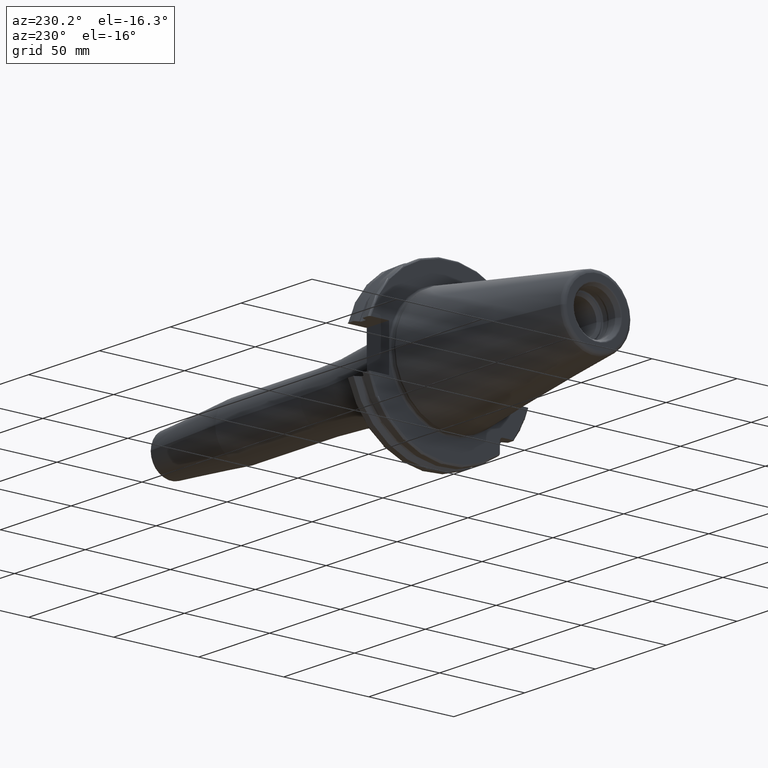
[diagram: clean part render]
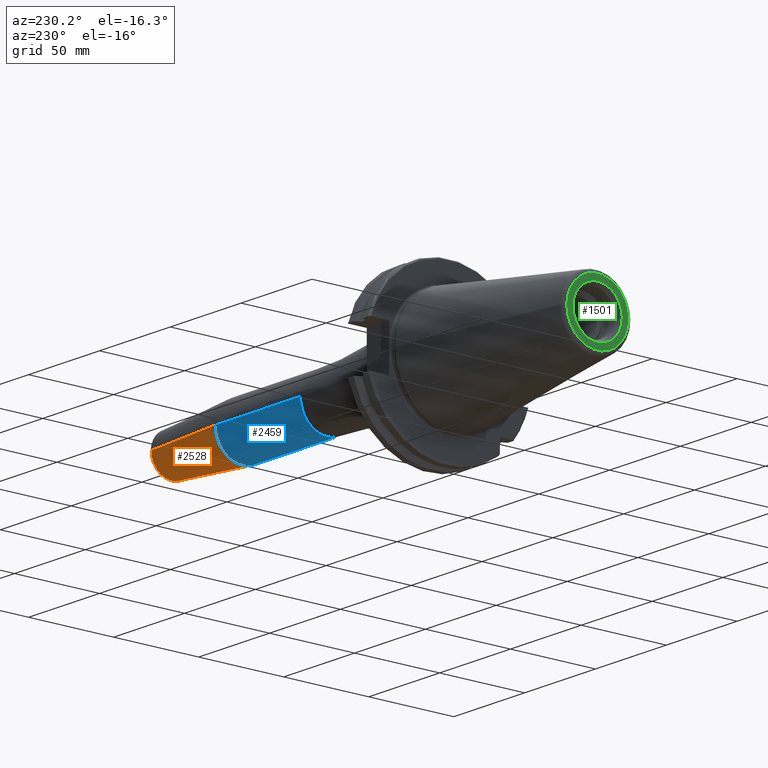
[diagram: same view with three faces highlighted in distinct colors, each labeled with its STEP entity id]
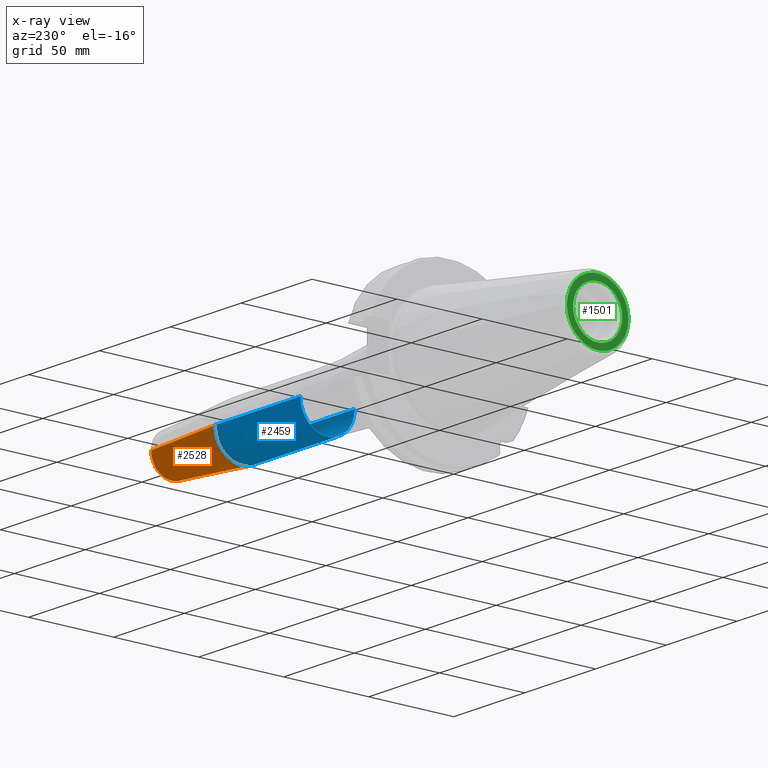
[diagram: x-ray of the same camera — body ghosted, the three highlighted faces saturated]
A machine part, auxiliary view with three faces highlighted in distinct colors.
The next image is the same camera in x-ray (body ghosted, the three faces saturated) — at least one of them is partly hidden behind the body in this view.
Their STEP definitions:

[orange] entity #2528 — the highlighted conical surface has half-angle 4.5 deg.
#935=CARTESIAN_POINT('',(1.491751810553E2,0.E0,0.E0));
#936=DIRECTION('',(-1.E0,0.E0,0.E0));
#937=DIRECTION('',(0.E0,1.E0,0.E0));
#938=AXIS2_PLACEMENT_3D('',#935,#936,#937);
#969=CARTESIAN_POINT('',(1.990784590957E2,0.E0,0.E0));
#970=DIRECTION('',(-1.E0,0.E0,0.E0));
#971=DIRECTION('',(0.E0,1.E0,0.E0));
#972=AXIS2_PLACEMENT_3D('',#969,#970,#971);
#974=DIRECTION('',(-9.969173337331E-1,7.845909572785E-2,6.978011430438E-14));
#975=VECTOR('',#974,5.005758888107E1);
#976=CARTESIAN_POINT('',(1.990784590957E2,1.207252684207E1,
-3.491064839044E-12));
#977=LINE('',#976,#975);
#978=DIRECTION('',(-9.969173337331E-1,-7.845909572785E-2,-6.977286913640E-14));
#979=VECTOR('',#978,5.005758888107E1);
#980=CARTESIAN_POINT('',(1.990784590957E2,-1.207252684207E1,
3.490702163404E-12));
#981=LINE('',#980,#979);
#1452=CARTESIAN_POINT('',(1.491751810553E2,1.6E1,0.E0));
#1453=CARTESIAN_POINT('',(1.491751810553E2,-1.6E1,0.E0));
#1454=VERTEX_POINT('',#1452);
#1455=VERTEX_POINT('',#1453);
#1456=CARTESIAN_POINT('',(1.990784590957E2,1.207252684207E1,0.E0));
#1457=CARTESIAN_POINT('',(1.990784590957E2,-1.207252684207E1,0.E0));
#1458=VERTEX_POINT('',#1456);
#1459=VERTEX_POINT('',#1457);
#2517=CARTESIAN_POINT('',(1.741268200755E2,0.E0,0.E0));
#2518=DIRECTION('',(-1.E0,0.E0,0.E0));
#2519=DIRECTION('',(0.E0,1.E0,0.E0));
#2520=AXIS2_PLACEMENT_3D('',#2517,#2518,#2519);
#2521=CONICAL_SURFACE('',#2520,1.403626342104E1,4.5E0);
#2522=ORIENTED_EDGE('',*,*,#2508,.F.);
#2523=ORIENTED_EDGE('',*,*,#2483,.T.);
#2524=ORIENTED_EDGE('',*,*,#2453,.T.);
#2525=ORIENTED_EDGE('',*,*,#2480,.F.);
#2526=EDGE_LOOP('',(#2522,#2523,#2524,#2525));
#2527=FACE_OUTER_BOUND('',#2526,.F.);
#2528=ADVANCED_FACE('',(#2527),#2521,.T.);
#939=CIRCLE('',#938,1.6E1);
#973=CIRCLE('',#972,1.207252684207E1);
#2453=EDGE_CURVE('',#1454,#1455,#939,.T.);
#2480=EDGE_CURVE('',#1459,#1455,#981,.T.);
#2483=EDGE_CURVE('',#1458,#1454,#977,.T.);
#2508=EDGE_CURVE('',#1458,#1459,#973,.T.);

[blue] entity #2459 — the highlighted cylindrical surface (edge-blend (fillet) strip) has radius 16 mm, axis along (1, 0, 0).
#926=CARTESIAN_POINT('',(8.905E1,0.E0,0.E0));
#927=DIRECTION('',(1.E0,0.E0,0.E0));
#928=DIRECTION('',(0.E0,-1.E0,0.E0));
#929=AXIS2_PLACEMENT_3D('',#926,#927,#928);
#931=DIRECTION('',(-1.E0,0.E0,0.E0));
#932=VECTOR('',#931,6.012518105530E1);
#933=CARTESIAN_POINT('',(1.491751810553E2,-1.6E1,0.E0));
#934=LINE('',#933,#932);
#935=CARTESIAN_POINT('',(1.491751810553E2,0.E0,0.E0));
#936=DIRECTION('',(-1.E0,0.E0,0.E0));
#937=DIRECTION('',(0.E0,1.E0,0.E0));
#938=AXIS2_PLACEMENT_3D('',#935,#936,#937);
#940=DIRECTION('',(-1.E0,0.E0,0.E0));
#941=VECTOR('',#940,6.012518105530E1);
#942=CARTESIAN_POINT('',(1.491751810553E2,1.6E1,0.E0));
#943=LINE('',#942,#941);
#1452=CARTESIAN_POINT('',(1.491751810553E2,1.6E1,0.E0));
#1453=CARTESIAN_POINT('',(1.491751810553E2,-1.6E1,0.E0));
#1454=VERTEX_POINT('',#1452);
#1455=VERTEX_POINT('',#1453);
#1480=CARTESIAN_POINT('',(8.905E1,1.6E1,0.E0));
#1481=VERTEX_POINT('',#1480);
#1482=CARTESIAN_POINT('',(8.905E1,-1.6E1,0.E0));
#1483=VERTEX_POINT('',#1482);
#2445=CARTESIAN_POINT('',(1.00025E1,0.E0,0.E0));
#2446=DIRECTION('',(1.E0,0.E0,0.E0));
#2447=DIRECTION('',(0.E0,-1.E0,0.E0));
#2448=AXIS2_PLACEMENT_3D('',#2445,#2446,#2447);
#2449=CYLINDRICAL_SURFACE('',#2448,1.6E1);
#2450=ORIENTED_EDGE('',*,*,#2439,.F.);
#2452=ORIENTED_EDGE('',*,*,#2451,.F.);
#2454=ORIENTED_EDGE('',*,*,#2453,.F.);
#2456=ORIENTED_EDGE('',*,*,#2455,.T.);
#2457=EDGE_LOOP('',(#2450,#2452,#2454,#2456));
#2458=FACE_OUTER_BOUND('',#2457,.F.);
#2459=ADVANCED_FACE('',(#2458),#2449,.T.);
#930=CIRCLE('',#929,1.6E1);
#939=CIRCLE('',#938,1.6E1);
#2439=EDGE_CURVE('',#1483,#1481,#930,.T.);
#2451=EDGE_CURVE('',#1455,#1483,#934,.T.);
#2453=EDGE_CURVE('',#1454,#1455,#939,.T.);
#2455=EDGE_CURVE('',#1454,#1481,#943,.T.);

[green] entity #1501 — the highlighted planar face has unit normal (1, 0, 0).
#2=CARTESIAN_POINT('',(-1.016E2,0.E0,0.E0));
#3=DIRECTION('',(-1.E0,0.E0,0.E0));
#4=DIRECTION('',(0.E0,1.E0,0.E0));
#5=AXIS2_PLACEMENT_3D('',#2,#3,#4);
#7=CARTESIAN_POINT('',(-1.016E2,0.E0,0.E0));
#8=DIRECTION('',(1.E0,0.E0,0.E0));
#9=DIRECTION('',(0.E0,1.E0,0.E0));
#10=AXIS2_PLACEMENT_3D('',#7,#8,#9);
#12=CARTESIAN_POINT('',(-1.016E2,0.E0,0.E0));
#13=DIRECTION('',(1.E0,0.E0,0.E0));
#14=DIRECTION('',(0.E0,1.E0,0.E0));
#15=AXIS2_PLACEMENT_3D('',#12,#13,#14);
#17=CARTESIAN_POINT('',(-1.016E2,0.E0,0.E0));
#18=DIRECTION('',(1.E0,0.E0,0.E0));
#19=DIRECTION('',(0.E0,-1.E0,0.E0));
#20=AXIS2_PLACEMENT_3D('',#17,#18,#19);
#1227=CARTESIAN_POINT('',(-1.016E2,1.816144700117E1,0.E0));
#1229=VERTEX_POINT('',#1227);
#1231=CARTESIAN_POINT('',(-1.016E2,-1.816144700117E1,0.E0));
#1233=VERTEX_POINT('',#1231);
#1290=CARTESIAN_POINT('',(-1.016E2,1.446188021535E1,0.E0));
#1291=CARTESIAN_POINT('',(-1.016E2,-1.446188021535E1,0.E0));
#1292=VERTEX_POINT('',#1290);
#1293=VERTEX_POINT('',#1291);
#1484=CARTESIAN_POINT('',(-1.016E2,0.E0,0.E0));
#1485=DIRECTION('',(1.E0,0.E0,0.E0));
#1486=DIRECTION('',(0.E0,-1.E0,0.E0));
#1487=AXIS2_PLACEMENT_3D('',#1484,#1485,#1486);
#1488=PLANE('',#1487);
#1490=ORIENTED_EDGE('',*,*,#1489,.F.);
#1492=ORIENTED_EDGE('',*,*,#1491,.T.);
#1493=EDGE_LOOP('',(#1490,#1492));
#1494=FACE_OUTER_BOUND('',#1493,.F.);
#1496=ORIENTED_EDGE('',*,*,#1495,.F.);
#1498=ORIENTED_EDGE('',*,*,#1497,.F.);
#1499=EDGE_LOOP('',(#1496,#1498));
#1500=FACE_BOUND('',#1499,.F.);
#1501=ADVANCED_FACE('',(#1494,#1500),#1488,.F.);
#6=CIRCLE('',#5,1.816144700117E1);
#11=CIRCLE('',#10,1.816144700117E1);
#16=CIRCLE('',#15,1.446188021535E1);
#21=CIRCLE('',#20,1.446188021535E1);
#1489=EDGE_CURVE('',#1229,#1233,#6,.T.);
#1491=EDGE_CURVE('',#1229,#1233,#11,.T.);
#1495=EDGE_CURVE('',#1292,#1293,#16,.T.);
#1497=EDGE_CURVE('',#1293,#1292,#21,.T.);